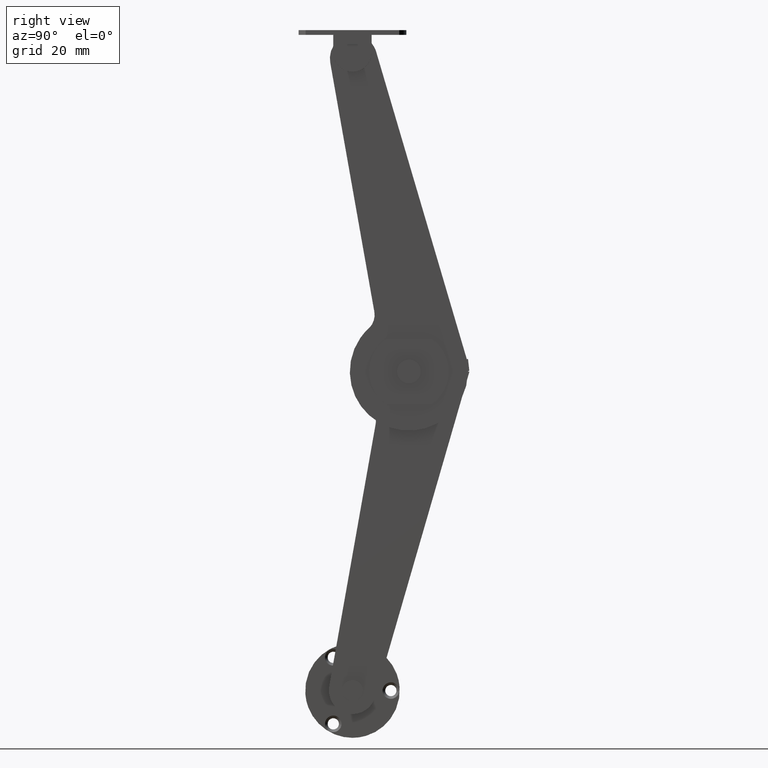
[diagram: clean part render]
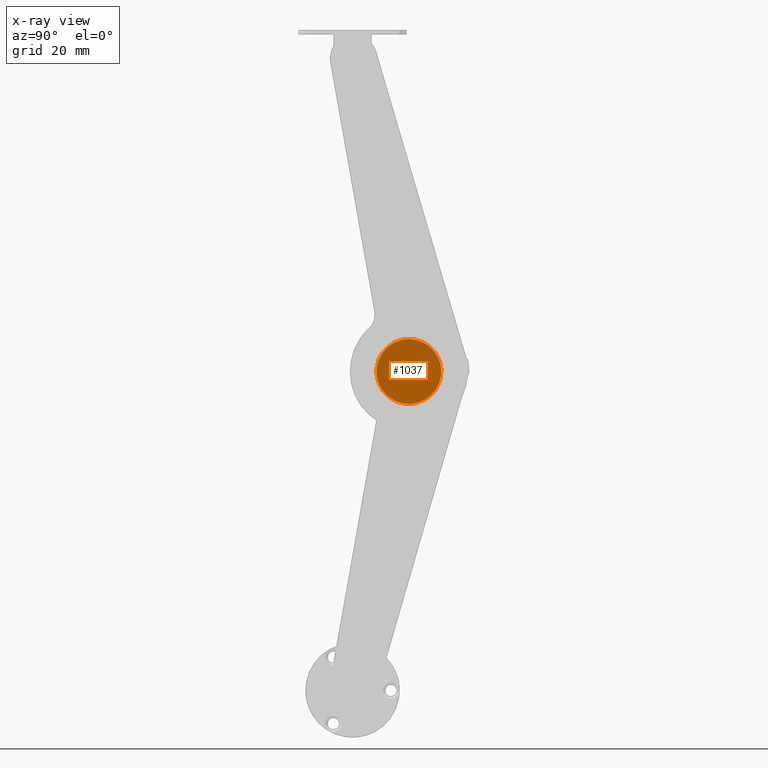
[diagram: x-ray — body ghosted, one internal face saturated and labeled with its STEP entity id]
A machine part, right view, then the same camera in x-ray: the body is ghosted and one INTERNAL B-rep face — a face not visible from any outside direction — is saturated and labeled: STEP entity #1037.
In plain terms, the highlighted face is a freeform B-spline surface patch.
Its self-contained STEP definition (entity closure, byte-faithful):
#674=CARTESIAN_POINT('',(6.899994000000080,19.101287999999951,1.499999999999999));
#675=VERTEX_POINT('',#674);
#676=CARTESIAN_POINT('',(6.899994000000080,20.596664000404989,0.117688646065021));
#677=VERTEX_POINT('',#676);
#678=CARTESIAN_POINT('',(6.899994000000080,19.101287999999951,1.499999999999999));
#679=CARTESIAN_POINT('',(6.899994000000080,20.487873732886431,1.499999999999999));
#680=CARTESIAN_POINT('',(6.899994000000080,20.596664000404992,0.117688646065021));
#688=(BOUNDED_CURVE()B_SPLINE_CURVE(2,(#678,#679,#680),.UNSPECIFIED.,.F.,.U.)B_SPLINE_CURVE_WITH_KNOTS((3,3),(0.0,0.236331300065717),.UNSPECIFIED.)CURVE()GEOMETRIC_REPRESENTATION_ITEM()RATIONAL_B_SPLINE_CURVE((1.0,0.723120659269537,0.969723354988426))REPRESENTATION_ITEM(''));
#689=EDGE_CURVE('',#675,#677,#688,.T.);
#691=CARTESIAN_POINT('',(6.899994000000080,17.605911999594909,-0.117688646065023));
#692=VERTEX_POINT('',#691);
#693=CARTESIAN_POINT('',(6.899994000000080,17.605911999594905,-0.117688646065023));
#694=CARTESIAN_POINT('',(6.899994000000080,17.601287999999954,-0.058935162996237));
#695=CARTESIAN_POINT('',(6.899994000000080,17.601287999999951,-1.164919E-015));
#696=CARTESIAN_POINT('',(6.899994000000080,17.601287999999951,1.500000000000000));
#697=CARTESIAN_POINT('',(6.899994000000080,19.101287999999951,1.499999999999999));
#705=(BOUNDED_CURVE()B_SPLINE_CURVE(2,(#693,#694,#695,#696,#697),.UNSPECIFIED.,.F.,.U.)B_SPLINE_CURVE_WITH_KNOTS((3,2,3),(0.736331300065717,0.750000000000000,1.0),.UNSPECIFIED.)CURVE()GEOMETRIC_REPRESENTATION_ITEM()RATIONAL_B_SPLINE_CURVE((0.969723354988426,0.983986121917011,1.0,0.707106781186548,1.0))REPRESENTATION_ITEM(''));
#706=EDGE_CURVE('',#692,#675,#705,.T.);
#773=CARTESIAN_POINT('',(6.899994000000080,19.101287999999951,-1.500000000000001));
#774=VERTEX_POINT('',#773);
#775=CARTESIAN_POINT('',(6.899994000000080,20.596664000404999,0.117688646065021));
#776=CARTESIAN_POINT('',(6.899994000000079,20.601287999999951,0.058935162996235));
#777=CARTESIAN_POINT('',(6.899994000000080,20.601287999999951,-1.164919E-015));
#778=CARTESIAN_POINT('',(6.899994000000080,20.601287999999947,-1.500000000000001));
#779=CARTESIAN_POINT('',(6.899994000000080,19.101287999999951,-1.500000000000001));
#787=(BOUNDED_CURVE()B_SPLINE_CURVE(2,(#775,#776,#777,#778,#779),.UNSPECIFIED.,.F.,.U.)B_SPLINE_CURVE_WITH_KNOTS((3,2,3),(0.236331300065717,0.250000000000000,0.500000000000000),.UNSPECIFIED.)CURVE()GEOMETRIC_REPRESENTATION_ITEM()RATIONAL_B_SPLINE_CURVE((0.969723354988426,0.983986121917011,1.0,0.707106781186548,1.0))REPRESENTATION_ITEM(''));
#788=EDGE_CURVE('',#677,#774,#787,.T.);
#822=CARTESIAN_POINT('',(6.899994000000080,19.101287999999951,-1.500000000000001));
#823=CARTESIAN_POINT('',(6.899994000000080,17.714702267113463,-1.500000000000000));
#824=CARTESIAN_POINT('',(6.899994000000080,17.605911999594905,-0.117688646065023));
#832=(BOUNDED_CURVE()B_SPLINE_CURVE(2,(#822,#823,#824),.UNSPECIFIED.,.F.,.U.)B_SPLINE_CURVE_WITH_KNOTS((3,3),(0.500000000000000,0.736331300065717),.UNSPECIFIED.)CURVE()GEOMETRIC_REPRESENTATION_ITEM()RATIONAL_B_SPLINE_CURVE((1.0,0.723120659269537,0.969723354988427))REPRESENTATION_ITEM(''));
#833=EDGE_CURVE('',#774,#692,#832,.T.);
#856=CARTESIAN_POINT('',(6.899994000000080,19.101287999999951,11.000000000000160));
#857=VERTEX_POINT('',#856);
#858=CARTESIAN_POINT('',(6.899994000000080,30.067378671027988,0.863050053470324));
#859=VERTEX_POINT('',#858);
#860=CARTESIAN_POINT('',(6.899994000000080,19.101287999999951,11.000000000000160));
#861=CARTESIAN_POINT('',(6.899994000000080,29.269583407377198,11.000000000000160));
#862=CARTESIAN_POINT('',(6.899994000000080,30.067378671027996,0.863050053470324));
#870=(BOUNDED_CURVE()B_SPLINE_CURVE(2,(#860,#861,#862),.UNSPECIFIED.,.F.,.U.)B_SPLINE_CURVE_WITH_KNOTS((3,3),(0.0,0.236331300618260),.UNSPECIFIED.)CURVE()GEOMETRIC_REPRESENTATION_ITEM()RATIONAL_B_SPLINE_CURVE((1.0,0.723120658622193,0.969723356141540))REPRESENTATION_ITEM(''));
#871=EDGE_CURVE('',#857,#859,#870,.T.);
#912=CARTESIAN_POINT('',(6.899994000000080,8.135197328971906,-0.863050053470326));
#913=VERTEX_POINT('',#912);
#919=CARTESIAN_POINT('',(6.899994000000080,8.135197328971906,-0.863050053470326));
#920=CARTESIAN_POINT('',(6.899994000000079,8.101287999999791,-0.432191177550543));
#921=CARTESIAN_POINT('',(6.899994000000080,8.101287999999791,-1.164919E-015));
#922=CARTESIAN_POINT('',(6.899994000000080,8.101287999999792,11.000000000000158));
#923=CARTESIAN_POINT('',(6.899994000000080,19.101287999999951,11.000000000000160));
#931=(BOUNDED_CURVE()B_SPLINE_CURVE(2,(#919,#920,#921,#922,#923),.UNSPECIFIED.,.F.,.U.)B_SPLINE_CURVE_WITH_KNOTS((3,2,3),(0.736331300618260,0.750000000000000,1.0),.UNSPECIFIED.)CURVE()GEOMETRIC_REPRESENTATION_ITEM()RATIONAL_B_SPLINE_CURVE((0.969723356141540,0.983986122564355,1.0,0.707106781186548,1.0))REPRESENTATION_ITEM(''));
#932=EDGE_CURVE('',#913,#857,#931,.T.);
#955=CARTESIAN_POINT('',(6.899994000000080,19.101287999999951,-11.000000000000160));
#956=VERTEX_POINT('',#955);
#957=CARTESIAN_POINT('',(6.899994000000080,30.067378671027996,0.863050053470324));
#958=CARTESIAN_POINT('',(6.899994000000080,30.101288000000107,0.432191177550539));
#959=CARTESIAN_POINT('',(6.899994000000080,30.101288000000110,-1.164919E-015));
#960=CARTESIAN_POINT('',(6.899994000000080,30.101288000000100,-11.000000000000160));
#961=CARTESIAN_POINT('',(6.899994000000080,19.101287999999951,-11.000000000000160));
#969=(BOUNDED_CURVE()B_SPLINE_CURVE(2,(#957,#958,#959,#960,#961),.UNSPECIFIED.,.F.,.U.)B_SPLINE_CURVE_WITH_KNOTS((3,2,3),(0.236331300618260,0.250000000000000,0.500000000000000),.UNSPECIFIED.)CURVE()GEOMETRIC_REPRESENTATION_ITEM()RATIONAL_B_SPLINE_CURVE((0.969723356141540,0.983986122564355,1.0,0.707106781186548,1.0))REPRESENTATION_ITEM(''));
#970=EDGE_CURVE('',#859,#956,#969,.T.);
#972=CARTESIAN_POINT('',(6.899994000000080,19.101287999999951,-11.000000000000160));
#973=CARTESIAN_POINT('',(6.899994000000080,8.932992592622689,-11.000000000000160));
#974=CARTESIAN_POINT('',(6.899994000000080,8.135197328971906,-0.863050053470326));
#982=(BOUNDED_CURVE()B_SPLINE_CURVE(2,(#972,#973,#974),.UNSPECIFIED.,.F.,.U.)B_SPLINE_CURVE_WITH_KNOTS((3,3),(0.500000000000000,0.736331300618260),.UNSPECIFIED.)CURVE()GEOMETRIC_REPRESENTATION_ITEM()RATIONAL_B_SPLINE_CURVE((1.0,0.723120658622193,0.969723356141541))REPRESENTATION_ITEM(''));
#983=EDGE_CURVE('',#956,#913,#982,.T.);
#1020=CARTESIAN_POINT('',(6.899994000000110,31.196831106076122,-12.098899957359910));
#1021=CARTESIAN_POINT('',(6.899994000000110,7.005745090619101,-12.098899957359910));
#1022=CARTESIAN_POINT('',(6.899994000000110,31.196831106076122,12.098900547445890));
#1023=CARTESIAN_POINT('',(6.899994000000110,7.005745090619101,12.098900547445890));
#1024=B_SPLINE_SURFACE_WITH_KNOTS('',1,1,((#1020,#1022),(#1021,#1023)),.UNSPECIFIED.,.F.,.F.,.U.,(2,2),(2,2),(0.0,24.191086015457021),(0.0,24.197800504805791),.UNSPECIFIED.);
#1025=ORIENTED_EDGE('',*,*,#932,.F.);
#1026=ORIENTED_EDGE('',*,*,#983,.F.);
#1027=ORIENTED_EDGE('',*,*,#970,.F.);
#1028=ORIENTED_EDGE('',*,*,#871,.F.);
#1029=EDGE_LOOP('',(#1025,#1026,#1027,#1028));
#1030=FACE_OUTER_BOUND('',#1029,.T.);
#1031=ORIENTED_EDGE('',*,*,#833,.T.);
#1032=ORIENTED_EDGE('',*,*,#706,.T.);
#1033=ORIENTED_EDGE('',*,*,#689,.T.);
#1034=ORIENTED_EDGE('',*,*,#788,.T.);
#1035=EDGE_LOOP('',(#1031,#1032,#1033,#1034));
#1036=FACE_BOUND('',#1035,.T.);
#1037=ADVANCED_FACE('',(#1030,#1036),#1024,.F.);